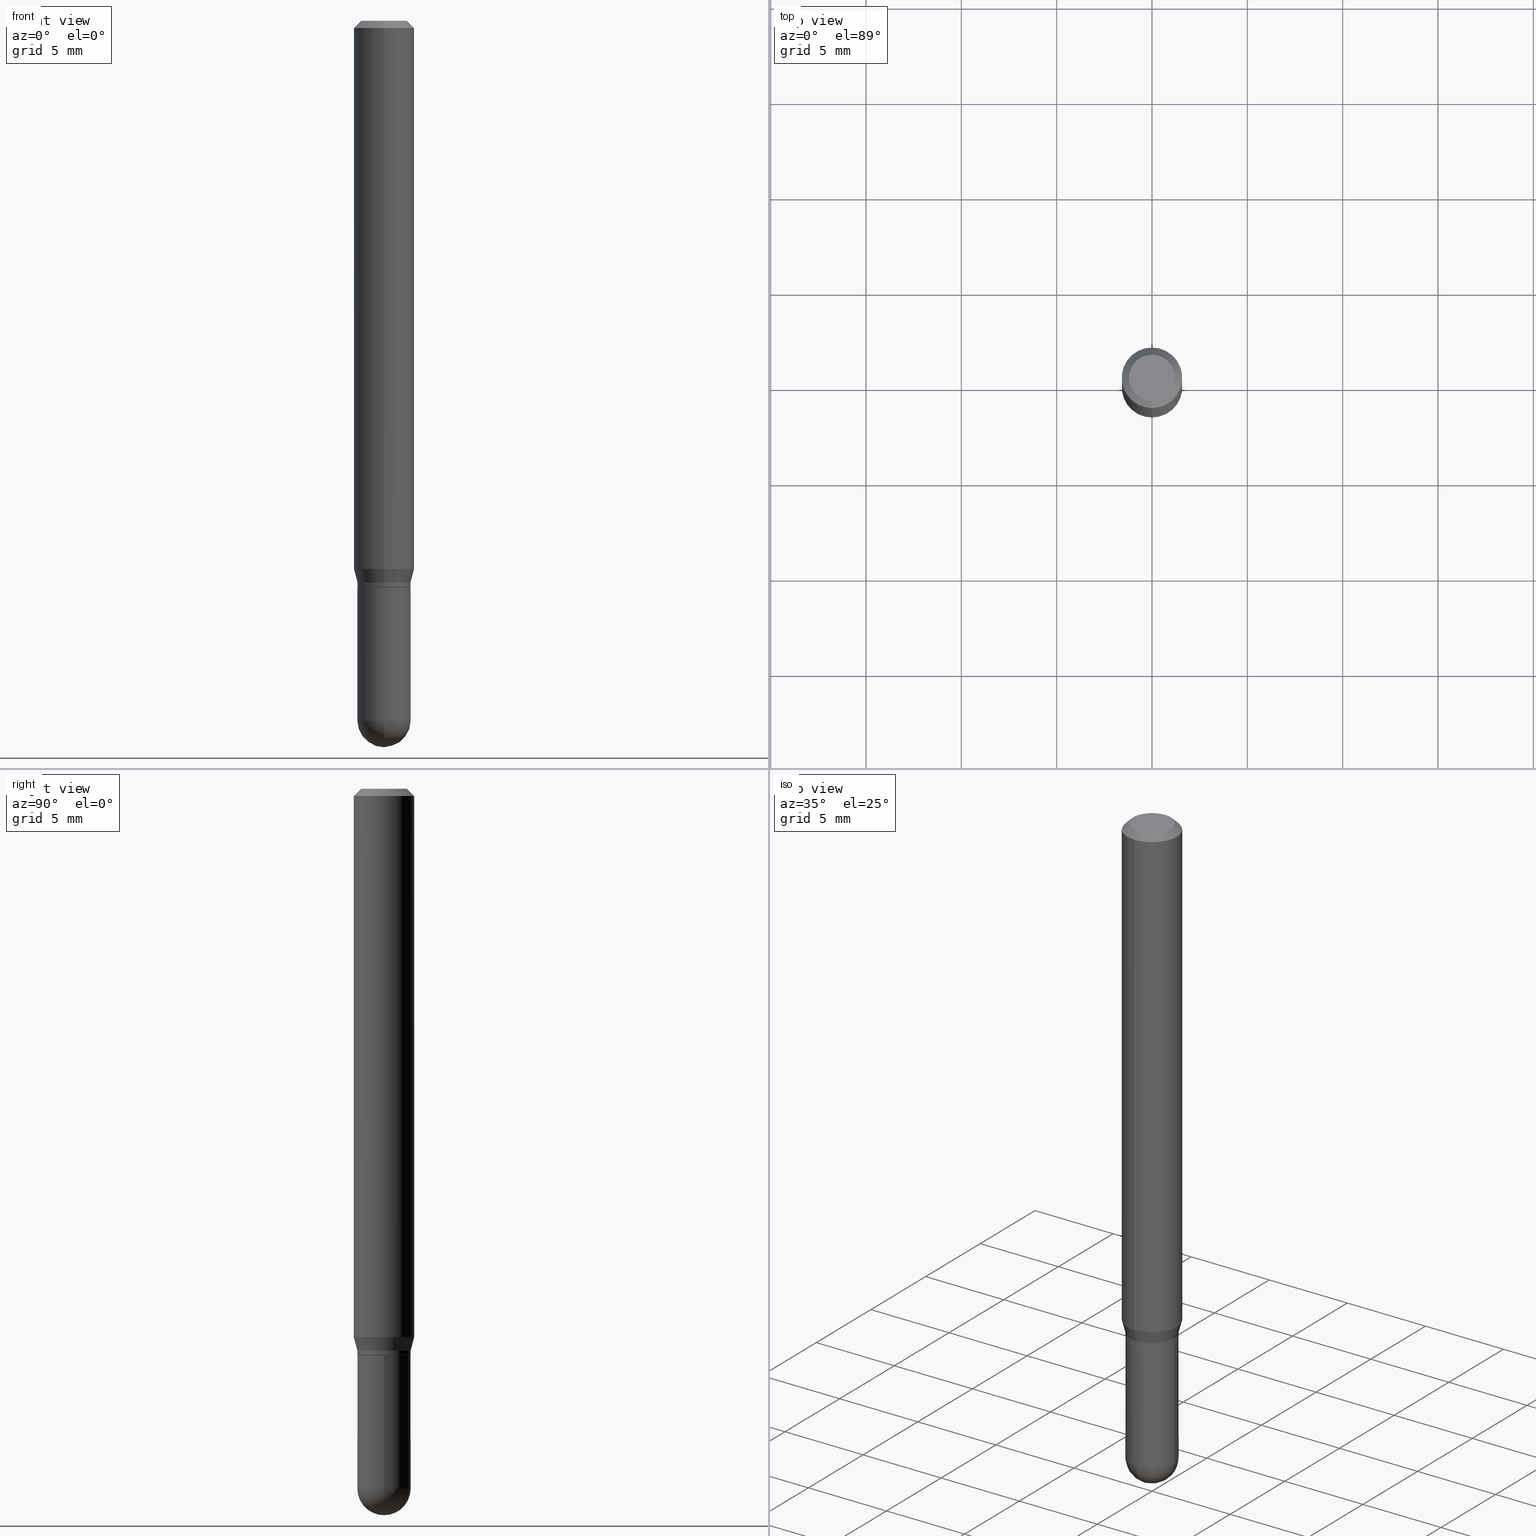
[diagram: canonical four-view strip — front | top / right | iso, engineering-drawing reading convention]
A machine part, canonical four-view strip (front | top / right | iso — engineering-drawing reading convention). The complete STEP part file that produces these views, byte-faithful:
ISO-10303-21;
HEADER;
FILE_DESCRIPTION (( 'STEP AP203' ),
    '1' );
FILE_NAME ('00949.STEP',
    '2024-03-07T19:08:54',
    ( '' ),
    ( '' ),
    'SwSTEP 2.0',
    'SolidWorks 2023',
    '' );
FILE_SCHEMA (( 'CONFIG_CONTROL_DESIGN' ));
ENDSEC;

DATA;
#1 = LOCAL_TIME ( 14, 8, 54.00000000000000000, #371 ) ;
#2 = ORIENTED_EDGE ( 'NONE', *, *, #196, .F. ) ;
#3 = CARTESIAN_POINT ( 'NONE',  ( 0.05500000000000000028, -3.840629472727446888E-16, 2.681897226687764826E-30 ) ) ;
#4 = CARTESIAN_POINT ( 'NONE',  ( -4.364351673553640100E-16, -0.06250000000000395517, -1.132009618943233598 ) ) ;
#5 = DIRECTION ( 'NONE',  ( -2.445468806185136597E-29, 3.491481338843145583E-15, 1.000000000000000000 ) ) ;
#6 = EDGE_CURVE ( 'NONE', #511, #354, #65, .T. ) ;
#7 = DIRECTION ( 'NONE',  ( 2.445557116082537122E-29, -3.491354874043780807E-15, -1.000000000000000000 ) ) ;
#8 = CARTESIAN_POINT ( 'NONE',  ( -3.840629472727450832E-16, -0.05500000000000006273, 1.920245180724081594E-16 ) ) ;
#9 = ORIENTED_EDGE ( 'NONE', *, *, #141, .T. ) ;
#10 = CARTESIAN_POINT ( 'NONE',  ( 3.533702424937522517E-29, -5.045190534628345684E-15, -1.445000000000000062 ) ) ;
#11 = EDGE_LOOP ( 'NONE', ( #123, #34, #121, #2 ) ) ;
#12 = ADVANCED_FACE ( 'NONE', ( #307 ), #463, .T. ) ;
#13 = DIRECTION ( 'NONE',  ( -2.445557116082537122E-29, 3.491354874043780807E-15, 1.000000000000000000 ) ) ;
#14 = DIRECTION ( 'NONE',  ( 1.000000000000000000, -6.982962677686262766E-15, 0.000000000000000000 ) ) ;
#15 = EDGE_LOOP ( 'NONE', ( #269, #251 ) ) ;
#16 = COORDINATED_UNIVERSAL_TIME_OFFSET ( 5, 0, .BEHIND. ) ;
#17 = CARTESIAN_POINT ( 'NONE',  ( 3.533702424937522517E-29, -5.045190534628345684E-15, -1.445000000000000062 ) ) ;
#18 = VERTEX_POINT ( 'NONE', #283 ) ;
#19 = APPLICATION_PROTOCOL_DEFINITION ( 'international standard', 'config_control_design', 1994, #189 ) ;
#20 = VECTOR ( 'NONE', #406, 39.37007874015748854 ) ;
#21 = CIRCLE ( 'NONE', #147, 0.06250000000000000000 ) ;
#22 = CYLINDRICAL_SURFACE ( 'NONE', #61, 0.05500000000000000028 ) ;
#23 = MECHANICAL_CONTEXT ( 'NONE', #189, 'mechanical' ) ;
#24 = FACE_OUTER_BOUND ( 'NONE', #337, .T. ) ;
#25 = CARTESIAN_POINT ( 'NONE',  ( -0.05500000000000000028, -4.174313345869358610E-15, -1.170000000000000151 ) ) ;
#26 = ORIENTED_EDGE ( 'NONE', *, *, #411, .F. ) ;
#27 = AXIS2_PLACEMENT_3D ( 'NONE', #403, #86, #250 ) ;
#28 = AXIS2_PLACEMENT_3D ( 'NONE', #282, #212, #479 ) ;
#29 = CARTESIAN_POINT ( 'NONE',  ( 2.860079047258527104E-29, -4.083139525194202180E-15, -1.169499999999999984 ) ) ;
#30 = EDGE_CURVE ( 'NONE', #91, #213, #345, .T. ) ;
#31 = EDGE_CURVE ( 'NONE', #18, #308, #184, .T. ) ;
#32 = FACE_OUTER_BOUND ( 'NONE', #339, .T. ) ;
#33 = AXIS2_PLACEMENT_3D ( 'NONE', #165, #119, #348 ) ;
#34 = ORIENTED_EDGE ( 'NONE', *, *, #501, .T. ) ;
#35 = EDGE_LOOP ( 'NONE', ( #254, #507, #302, #195 ) ) ;
#36 =( NAMED_UNIT ( * ) SI_UNIT ( $, .STERADIAN. ) SOLID_ANGLE_UNIT ( ) );
#37 = ORIENTED_EDGE ( 'NONE', *, *, #370, .F. ) ;
#38 = EDGE_LOOP ( 'NONE', ( #134, #170 ) ) ;
#39 = CIRCLE ( 'NONE', #325, 0.05500000000000000028 ) ;
#40 = VECTOR ( 'NONE', #338, 39.37007874015748143 ) ;
#41 = CYLINDRICAL_SURFACE ( 'NONE', #353, 0.05500000000000006273 ) ;
#42 =( NAMED_UNIT ( * ) PLANE_ANGLE_UNIT ( ) SI_UNIT ( $, .RADIAN. ) );
#43 = CC_DESIGN_PERSON_AND_ORGANIZATION_ASSIGNMENT ( #489, #281, ( #391 ) ) ;
#44 = DIRECTION ( 'NONE',  ( -2.445557116082537122E-29, 3.491354874043780807E-15, 1.000000000000000000 ) ) ;
#45 = DIRECTION ( 'NONE',  ( -2.445557116082537122E-29, 3.491354874043780807E-15, 1.000000000000000000 ) ) ;
#46 = CALENDAR_DATE ( 2024, 7, 3 ) ;
#47 = ORIENTED_EDGE ( 'NONE', *, *, #381, .T. ) ;
#48 = CYLINDRICAL_SURFACE ( 'NONE', #464, 0.05500000000000000028 ) ;
#49 = DIRECTION ( 'NONE',  ( 1.000000000000000000, -6.982962677686262766E-15, 0.000000000000000000 ) ) ;
#50 = ORIENTED_EDGE ( 'NONE', *, *, #106, .T. ) ;
#51 = CONICAL_SURFACE ( 'NONE', #305, 0.05500000000000006967, 0.2617993877991495744 ) ;
#52 = DIRECTION ( 'NONE',  ( -6.982962677686266711E-15, -1.000000000000000000, 3.491354874043780807E-15 ) ) ;
#53 = VERTEX_POINT ( 'NONE', #357 ) ;
#54 = APPROVAL_DATE_TIME ( #352, #126 ) ;
#55 = CARTESIAN_POINT ( 'NONE',  ( -3.805714659338729375E-16, -0.05450000000000408684, -1.169999999999999929 ) ) ;
#56 = FACE_OUTER_BOUND ( 'NONE', #11, .T. ) ;
#57 = ORIENTED_EDGE ( 'NONE', *, *, #462, .F. ) ;
#58 = COORDINATED_UNIVERSAL_TIME_OFFSET ( 5, 0, .BEHIND. ) ;
#59 = DIRECTION ( 'NONE',  ( -6.982962677686265133E-15, -1.000000000000000000, 2.483498176058417988E-15 ) ) ;
#60 = VERTEX_POINT ( 'NONE', #431 ) ;
#61 = AXIS2_PLACEMENT_3D ( 'NONE', #252, #375, #179 ) ;
#62 = EDGE_CURVE ( 'NONE', #358, #458, #393, .T. ) ;
#63 = CARTESIAN_POINT ( 'NONE',  ( -4.364351673553916201E-16, -0.06250000000000000000, 2.182096796277363005E-16 ) ) ;
#64 = CARTESIAN_POINT ( 'NONE',  ( 4.440892098500625669E-16, 0.06250000000000000000, -2.182096796277363005E-16 ) ) ;
#65 = CIRCLE ( 'NONE', #267, 0.06250000000000000000 ) ;
#66 = CIRCLE ( 'NONE', #503, 0.05500000000000006967 ) ;
#67 = ADVANCED_FACE ( 'NONE', ( #440 ), #133, .T. ) ;
#68 = APPROVAL_PERSON_ORGANIZATION ( #245, #126, #284 ) ;
#69 = DIRECTION ( 'NONE',  ( -2.445557116082537122E-29, 3.491354874043780807E-15, 1.000000000000000000 ) ) ;
#70 = CIRCLE ( 'NONE', #327, 0.05500000000000006273 ) ;
#71 = ADVANCED_FACE ( 'NONE', ( #56 ), #41, .T. ) ;
#72 = APPROVAL_PERSON_ORGANIZATION ( #131, #183, #362 ) ;
#73 = AXIS2_PLACEMENT_3D ( 'NONE', #111, #69, #209 ) ;
#74 = EDGE_LOOP ( 'NONE', ( #9, #502, #26, #499 ) ) ;
#75 = EDGE_LOOP ( 'NONE', ( #387, #50, #194, #422 ) ) ;
#76 = DIRECTION ( 'NONE',  ( -2.445557116082537122E-29, 3.491354874043780807E-15, 1.000000000000000000 ) ) ;
#77 = DIRECTION ( 'NONE',  ( -2.445557116082537122E-29, 3.491354874043780807E-15, 1.000000000000000000 ) ) ;
#78 = ADVANCED_FACE ( 'NONE', ( #399 ), #287, .T. ) ;
#79 = AXIS2_PLACEMENT_3D ( 'NONE', #82, #7, #127 ) ;
#80 = APPROVAL_PERSON_ORGANIZATION ( #255, #409, #218 ) ;
#81 = ORIENTED_EDGE ( 'NONE', *, *, #474, .T. ) ;
#82 = CARTESIAN_POINT ( 'NONE',  ( 3.668335674123808416E-31, -5.237032311065674440E-17, -0.01500000000000000812 ) ) ;
#83 = FACE_OUTER_BOUND ( 'NONE', #230, .T. ) ;
#84 = SECURITY_CLASSIFICATION_LEVEL ( 'unclassified' ) ;
#85 = EDGE_CURVE ( 'NONE', #166, #18, #226, .T. ) ;
#86 = DIRECTION ( 'NONE',  ( -2.445557116082537122E-29, 3.491354874043780807E-15, 1.000000000000000000 ) ) ;
#87 = ADVANCED_FACE ( 'NONE', ( #83 ), #496, .T. ) ;
#88 = PRODUCT_RELATED_PRODUCT_CATEGORY ( 'detail', '', ( #363 ) ) ;
#89 = FACE_OUTER_BOUND ( 'NONE', #139, .T. ) ;
#90 = DIRECTION ( 'NONE',  ( 6.982962677686266711E-15, 1.000000000000000000, -4.966996352116837554E-15 ) ) ;
#91 = VERTEX_POINT ( 'NONE', #158 ) ;
#92 = CIRCLE ( 'NONE', #219, 0.05500000000000000028 ) ;
#93 = DIRECTION ( 'NONE',  ( -6.982962677686265133E-15, -1.000000000000000000, 2.483498176058417988E-15 ) ) ;
#94 = DIRECTION ( 'NONE',  ( -2.445468806185136597E-29, 3.491481338843145583E-15, 1.000000000000000000 ) ) ;
#95 = ORIENTED_EDGE ( 'NONE', *, *, #6, .T. ) ;
#96 = APPROVAL_DATE_TIME ( #294, #409 ) ;
#97 = COORDINATED_UNIVERSAL_TIME_OFFSET ( 5, 0, .BEHIND. ) ;
#98 = DIRECTION ( 'NONE',  ( 6.982962677686265922E-15, 1.000000000000000000, -3.483106191921935554E-15 ) ) ;
#99 = CARTESIAN_POINT ( 'NONE',  ( -4.287811248607203282E-16, -0.06250000000000005551, -0.01499999999999979128 ) ) ;
#100 = CC_DESIGN_PERSON_AND_ORGANIZATION_ASSIGNMENT ( #436, #241, ( #391 ) ) ;
#101 = DIRECTION ( 'NONE',  ( -6.982962677686266711E-15, -1.000000000000000000, 2.506282562994736586E-15 ) ) ;
#102 = AXIS2_PLACEMENT_3D ( 'NONE', #373, #188, #138 ) ;
#103 = CARTESIAN_POINT ( 'NONE',  ( 2.836846254655743353E-29, -4.049971653890786147E-15, -1.160000000000000142 ) ) ;
#104 = DIRECTION ( 'NONE',  ( -2.445557116082537122E-29, 3.491354874043780807E-15, 1.000000000000000000 ) ) ;
#105 = CARTESIAN_POINT ( 'NONE',  ( 3.907985046680839469E-16, 0.05499999999999602429, -1.160000000000000364 ) ) ;
#106 = EDGE_CURVE ( 'NONE', #481, #166, #300, .T. ) ;
#107 = VERTEX_POINT ( 'NONE', #402 ) ;
#108 = CIRCLE ( 'NONE', #425, 0.06250000000000000000 ) ;
#109 = CIRCLE ( 'NONE', #248, 0.05450000000000000677 ) ;
#110 = ORIENTED_EDGE ( 'NONE', *, *, #62, .T. ) ;
#111 = CARTESIAN_POINT ( 'NONE',  ( 0.000000000000000000, 0.000000000000000000, 0.000000000000000000 ) ) ;
#112 = DIRECTION ( 'NONE',  ( -1.000000000000000000, 6.982962677686266711E-15, -4.883557194083112340E-29 ) ) ;
#113 = CIRCLE ( 'NONE', #433, 0.05500000000000006273 ) ;
#114 = LOCAL_TIME ( 14, 8, 54.00000000000000000, #97 ) ;
#115 = CARTESIAN_POINT ( 'NONE',  ( 4.440892098500901277E-16, 0.06249999999999603789, -1.132009618943234264 ) ) ;
#116 = VERTEX_POINT ( 'NONE', #312 ) ;
#117 = EDGE_CURVE ( 'NONE', #203, #53, #39, .T. ) ;
#118 = CARTESIAN_POINT ( 'NONE',  ( 3.890221478286836949E-16, 0.05449999999999592670, -1.170000000000000151 ) ) ;
#119 = DIRECTION ( 'NONE',  ( -2.445557116082537122E-29, 3.491354874043780807E-15, 1.000000000000000000 ) ) ;
#120 = DIRECTION ( 'NONE',  ( -2.445557116082536842E-29, 3.491354874043780807E-15, 1.000000000000000000 ) ) ;
#121 = ORIENTED_EDGE ( 'NONE', *, *, #163, .T. ) ;
#122 = DIRECTION ( 'NONE',  ( -2.445468806185136877E-29, 3.491481338843145188E-15, 1.000000000000000000 ) ) ;
#123 = ORIENTED_EDGE ( 'NONE', *, *, #388, .F. ) ;
#124 = FACE_OUTER_BOUND ( 'NONE', #306, .T. ) ;
#125 = DATE_AND_TIME ( #180, #137 ) ;
#126 = APPROVAL ( #202, 'UNSPECIFIED' ) ;
#127 = DIRECTION ( 'NONE',  ( 6.982962677686265922E-15, 1.000000000000000000, -3.483106191921935554E-15 ) ) ;
#128 = EDGE_CURVE ( 'NONE', #18, #53, #472, .T. ) ;
#129 = CARTESIAN_POINT ( 'NONE',  ( 3.668335674123808416E-31, -5.237032311065674440E-17, -0.01500000000000000812 ) ) ;
#130 = EDGE_LOOP ( 'NONE', ( #377, #110, #434, #365 ) ) ;
#131 = PERSON_AND_ORGANIZATION ( #315, #207 ) ;
#132 = DIRECTION ( 'NONE',  ( 6.982962677686265922E-15, 1.000000000000000000, -3.491354874043780807E-15 ) ) ;
#133 = CYLINDRICAL_SURFACE ( 'NONE', #27, 0.06250000000000000000 ) ;
#134 = ORIENTED_EDGE ( 'NONE', *, *, #266, .T. ) ;
#135 = AXIS2_PLACEMENT_3D ( 'NONE', #444, #5, #49 ) ;
#136 = VECTOR ( 'NONE', #301, 39.37007874015748143 ) ;
#137 = LOCAL_TIME ( 14, 8, 54.00000000000000000, #58 ) ;
#138 = DIRECTION ( 'NONE',  ( 6.982962677686265922E-15, 1.000000000000000000, 0.000000000000000000 ) ) ;
#139 = EDGE_LOOP ( 'NONE', ( #273, #81, #488, #400 ) ) ;
#140 = DATE_AND_TIME ( #46, #421 ) ;
#141 = EDGE_CURVE ( 'NONE', #354, #511, #108, .T. ) ;
#142 = CARTESIAN_POINT ( 'NONE',  ( 4.364351673553919652E-16, 0.06249999999999995143, -0.01500000000000022669 ) ) ;
#143 = VECTOR ( 'NONE', #122, 39.37007874015748143 ) ;
#144 = CARTESIAN_POINT ( 'NONE',  ( -4.364351673553912750E-16, -0.06250000000000005551, -0.01499999999999979128 ) ) ;
#145 = ORIENTED_EDGE ( 'NONE', *, *, #474, .F. ) ;
#146 = ORIENTED_EDGE ( 'NONE', *, *, #501, .F. ) ;
#147 = AXIS2_PLACEMENT_3D ( 'NONE', #222, #104, #456 ) ;
#148 = ADVANCED_BREP_SHAPE_REPRESENTATION ( '00949', ( #190, #342, #384 ), #316 ) ;
#149 = ORIENTED_EDGE ( 'NONE', *, *, #192, .F. ) ;
#150 = ORIENTED_EDGE ( 'NONE', *, *, #370, .T. ) ;
#151 = ORIENTED_EDGE ( 'NONE', *, *, #461, .T. ) ;
#152 = ORIENTED_EDGE ( 'NONE', *, *, #106, .F. ) ;
#153 = CLOSED_SHELL ( 'NONE', ( #280, #506, #303, #78, #467 ) ) ;
#154 = AXIS2_PLACEMENT_3D ( 'NONE', #398, #311, #93 ) ;
#155 = VERTEX_POINT ( 'NONE', #240 ) ;
#156 = DIRECTION ( 'NONE',  ( -2.445557116082537122E-29, 3.491354874043780807E-15, 1.000000000000000000 ) ) ;
#157 = DIRECTION ( 'NONE',  ( -6.982962677686266711E-15, -1.000000000000000000, 2.506282562994736586E-15 ) ) ;
#158 = CARTESIAN_POINT ( 'NONE',  ( 4.440892098500904235E-16, 0.06249999999999995143, -0.01500000000000022669 ) ) ;
#159 = DIRECTION ( 'NONE',  ( -1.807323732225325406E-15, -0.2588190451025175198, 0.9659258262890690894 ) ) ;
#160 = DIRECTION ( 'NONE',  ( -6.982962677686265922E-15, -1.000000000000000000, 2.483498176058418383E-15 ) ) ;
#161 = CARTESIAN_POINT ( 'NONE',  ( -3.907985046680198520E-16, -0.05500000000000507955, -1.444999999999999840 ) ) ;
#162 = PERSON_AND_ORGANIZATION_ROLE ( 'creator' ) ;
#163 = EDGE_CURVE ( 'NONE', #107, #173, #395, .T. ) ;
#164 = ORIENTED_EDGE ( 'NONE', *, *, #229, .T. ) ;
#165 = CARTESIAN_POINT ( 'NONE',  ( 2.861301825816568708E-29, -4.084885202631223537E-15, -1.170000000000000151 ) ) ;
#166 = VERTEX_POINT ( 'NONE', #161 ) ;
#167 = DIRECTION ( 'NONE',  ( 1.000000000000000000, 0.000000000000000000, 0.000000000000000000 ) ) ;
#168 = FACE_OUTER_BOUND ( 'NONE', #292, .T. ) ;
#169 = CARTESIAN_POINT ( 'NONE',  ( 3.872457909892832456E-16, 0.05449999999999592670, -1.170000000000000151 ) ) ;
#170 = ORIENTED_EDGE ( 'NONE', *, *, #174, .T. ) ;
#171 = APPROVAL_STATUS ( 'not_yet_approved' ) ;
#172 = DIRECTION ( 'NONE',  ( -2.445468806185136597E-29, 3.491481338843145583E-15, 1.000000000000000000 ) ) ;
#173 = VERTEX_POINT ( 'NONE', #317 ) ;
#174 = EDGE_CURVE ( 'NONE', #60, #155, #232, .T. ) ;
#175 = DATE_AND_TIME ( #214, #1 ) ;
#176 = VECTOR ( 'NONE', #364, 39.37007874015748143 ) ;
#177 = DIRECTION ( 'NONE',  ( -2.445468806185136597E-29, 3.491481338843145583E-15, 1.000000000000000000 ) ) ;
#178 = ADVANCED_FACE ( 'NONE', ( #124 ), #304, .T. ) ;
#179 = DIRECTION ( 'NONE',  ( 1.000000000000000000, -6.982962677686266711E-15, 4.876176775795935793E-29 ) ) ;
#180 = CALENDAR_DATE ( 2024, 7, 3 ) ;
#181 = LINE ( 'NONE', #494, #442 ) ;
#182 = CYLINDRICAL_SURFACE ( 'NONE', #419, 0.05500000000000006273 ) ;
#183 = APPROVAL ( #492, 'UNSPECIFIED' ) ;
#184 = CIRCLE ( 'NONE', #486, 0.05500000000000000028 ) ;
#185 = AXIS2_PLACEMENT_3D ( 'NONE', #478, #285, #416 ) ;
#186 = ORIENTED_EDGE ( 'NONE', *, *, #141, .F. ) ;
#187 = CARTESIAN_POINT ( 'NONE',  ( -0.05500000000000000028, 3.907985046680551042E-16, -2.705414299640198362E-30 ) ) ;
#188 = DIRECTION ( 'NONE',  ( 1.000000000000000000, -6.982962677686265922E-15, 4.883557194083112340E-29 ) ) ;
#189 = APPLICATION_CONTEXT ( 'configuration controlled 3d designs of mechanical parts and assemblies' ) ;
#190 = MANIFOLD_SOLID_BREP ( 'Body-Move/Copy2[1]', #153 ) ;
#191 = ORIENTED_EDGE ( 'NONE', *, *, #266, .F. ) ;
#192 = EDGE_CURVE ( 'NONE', #53, #203, #92, .T. ) ;
#193 = PRODUCT_DEFINITION ( 'UNKNOWN', '', #391, #500 ) ;
#194 = ORIENTED_EDGE ( 'NONE', *, *, #504, .F. ) ;
#195 = ORIENTED_EDGE ( 'NONE', *, *, #6, .F. ) ;
#196 = EDGE_CURVE ( 'NONE', #243, #173, #66, .T. ) ;
#197 = PLANE ( 'NONE',  #473 ) ;
#198 = AXIS2_PLACEMENT_3D ( 'NONE', #480, #246, #320 ) ;
#199 = ORIENTED_EDGE ( 'NONE', *, *, #388, .T. ) ;
#200 = VECTOR ( 'NONE', #493, 39.37007874015748143 ) ;
#201 = CARTESIAN_POINT ( 'NONE',  ( 2.168310828084403938E-46, -3.095549283347382873E-32, -8.866326669800925225E-18 ) ) ;
#202 = APPROVAL_STATUS ( 'not_yet_approved' ) ;
#203 = VERTEX_POINT ( 'NONE', #25 ) ;
#204 = DIRECTION ( 'NONE',  ( -1.000000000000000000, 6.982962677686266711E-15, -4.883557194083112340E-29 ) ) ;
#205 = VECTOR ( 'NONE', #275, 39.37007874015748143 ) ;
#206 = ORIENTED_EDGE ( 'NONE', *, *, #128, .F. ) ;
#207 = ORGANIZATION ( 'UNSPECIFIED', 'UNSPECIFIED', '' ) ;
#208 = CARTESIAN_POINT ( 'NONE',  ( 2.860079047258527104E-29, -4.083139525194202180E-15, -1.169499999999999984 ) ) ;
#209 = DIRECTION ( 'NONE',  ( -6.982962677686265922E-15, -1.000000000000000000, 3.491354874043780807E-15 ) ) ;
#210 = EDGE_LOOP ( 'NONE', ( #152, #497, #417, #466 ) ) ;
#211 = DATE_TIME_ROLE ( 'creation_date' ) ;
#212 = DIRECTION ( 'NONE',  ( 2.438088387897960049E-29, -3.491481338843145188E-15, -1.000000000000000000 ) ) ;
#213 = VERTEX_POINT ( 'NONE', #144 ) ;
#214 = CALENDAR_DATE ( 2024, 7, 3 ) ;
#215 = EDGE_CURVE ( 'NONE', #243, #511, #451, .T. ) ;
#216 = FACE_OUTER_BOUND ( 'NONE', #35, .T. ) ;
#217 = EDGE_CURVE ( 'NONE', #358, #271, #109, .T. ) ;
#218 = APPROVAL_ROLE ( '' ) ;
#219 = AXIS2_PLACEMENT_3D ( 'NONE', #333, #177, #329 ) ;
#220 = SECURITY_CLASSIFICATION ( '', '', #84 ) ;
#221 = DIRECTION ( 'NONE',  ( -6.982962677686266711E-15, -1.000000000000000000, 2.506282562994736586E-15 ) ) ;
#222 = CARTESIAN_POINT ( 'NONE',  ( 3.668335674123808416E-31, -5.237032311065674440E-17, -0.01500000000000000812 ) ) ;
#223 = EDGE_CURVE ( 'NONE', #271, #358, #495, .T. ) ;
#224 = ORIENTED_EDGE ( 'NONE', *, *, #381, .F. ) ;
#225 = DIRECTION ( 'NONE',  ( -2.445557116082537122E-29, 3.491354874043780807E-15, 1.000000000000000000 ) ) ;
#226 = CIRCLE ( 'NONE', #135, 0.05500000000000000028 ) ;
#227 = AXIS2_PLACEMENT_3D ( 'NONE', #274, #76, #236 ) ;
#228 = CC_DESIGN_DATE_AND_TIME_ASSIGNMENT ( #125, #211, ( #193 ) ) ;
#229 = EDGE_CURVE ( 'NONE', #354, #213, #413, .T. ) ;
#230 = EDGE_LOOP ( 'NONE', ( #468, #429, #424, #146 ) ) ;
#231 = LOCAL_TIME ( 14, 8, 54.00000000000000000, #16 ) ;
#232 = CIRCLE ( 'NONE', #427, 0.04749999999999999362 ) ;
#233 = EDGE_CURVE ( 'NONE', #173, #354, #181, .T. ) ;
#234 = CARTESIAN_POINT ( 'NONE',  ( 2.861301825816568708E-29, -4.084885202631223537E-15, -1.170000000000000151 ) ) ;
#235 = ADVANCED_FACE ( 'NONE', ( #32 ), #277, .T. ) ;
#236 = DIRECTION ( 'NONE',  ( -6.982962677686265133E-15, -1.000000000000000000, 2.483498176058417988E-15 ) ) ;
#237 = DIRECTION ( 'NONE',  ( 1.000000000000000000, -6.982962677686262766E-15, 0.000000000000000000 ) ) ;
#238 = AXIS2_PLACEMENT_3D ( 'NONE', #378, #376, #98 ) ;
#239 = CARTESIAN_POINT ( 'NONE',  ( 3.840629472727801875E-16, 0.05499999999999497652, -1.445000000000000284 ) ) ;
#240 = CARTESIAN_POINT ( 'NONE',  ( 3.840629472727447874E-16, 0.04749999999999999362, -1.747056831868805136E-16 ) ) ;
#241 = PERSON_AND_ORGANIZATION_ROLE ( 'design_supplier' ) ;
#242 = UNCERTAINTY_MEASURE_WITH_UNIT (LENGTH_MEASURE( 1.000000000000000082E-05 ), #313, 'distance_accuracy_value', 'NONE');
#243 = VERTEX_POINT ( 'NONE', #359 ) ;
#244 = DIRECTION ( 'NONE',  ( -6.982962677686265922E-15, -1.000000000000000000, 3.491354874043780807E-15 ) ) ;
#245 = PERSON_AND_ORGANIZATION ( #315, #207 ) ;
#246 = DIRECTION ( 'NONE',  ( -1.000000000000000000, 7.105427357601001070E-15, -4.926315508542082329E-29 ) ) ;
#247 = AXIS2_PLACEMENT_3D ( 'NONE', #129, #77, #437 ) ;
#248 = AXIS2_PLACEMENT_3D ( 'NONE', #367, #256, #101 ) ;
#249 = LINE ( 'NONE', #394, #176 ) ;
#250 = DIRECTION ( 'NONE',  ( -6.982962677686265922E-15, -1.000000000000000000, 3.491354874043780807E-15 ) ) ;
#251 = ORIENTED_EDGE ( 'NONE', *, *, #217, .F. ) ;
#252 = CARTESIAN_POINT ( 'NONE',  ( 0.000000000000000000, 0.000000000000000000, 0.000000000000000000 ) ) ;
#253 = PRODUCT_DEFINITION_SHAPE ( 'NONE', 'NONE',  #193 ) ;
#254 = ORIENTED_EDGE ( 'NONE', *, *, #215, .F. ) ;
#255 = PERSON_AND_ORGANIZATION ( #315, #207 ) ;
#256 = DIRECTION ( 'NONE',  ( -2.445557116082537122E-29, 3.491354874043780807E-15, 1.000000000000000000 ) ) ;
#257 = CARTESIAN_POINT ( 'NONE',  ( 3.665851501982462558E-29, -5.240589786962374592E-15, -1.500000000000000222 ) ) ;
#258 = CONICAL_SURFACE ( 'NONE', #426, 0.05450000000000000677, 0.7853981633974653764 ) ;
#259 = DIRECTION ( 'NONE',  ( -2.445557116082537122E-29, 3.491354874043780807E-15, 1.000000000000000000 ) ) ;
#260 = DIRECTION ( 'NONE',  ( -2.445557116082537122E-29, 3.491354874043780807E-15, 1.000000000000000000 ) ) ;
#261 = ORIENTED_EDGE ( 'NONE', *, *, #215, .T. ) ;
#262 = CARTESIAN_POINT ( 'NONE',  ( 0.000000000000000000, 0.000000000000000000, 0.000000000000000000 ) ) ;
#263 = ADVANCED_FACE ( 'NONE', ( #89 ), #390, .T. ) ;
#264 = CIRCLE ( 'NONE', #227, 0.05500000000000006967 ) ;
#265 = DIRECTION ( 'NONE',  ( -2.445557116082537122E-29, 3.491354874043780807E-15, 1.000000000000000000 ) ) ;
#266 = EDGE_CURVE ( 'NONE', #155, #60, #268, .T. ) ;
#267 = AXIS2_PLACEMENT_3D ( 'NONE', #343, #265, #505 ) ;
#268 = CIRCLE ( 'NONE', #346, 0.04749999999999999362 ) ;
#269 = ORIENTED_EDGE ( 'NONE', *, *, #223, .F. ) ;
#270 = ADVANCED_FACE ( 'NONE', ( #483 ), #258, .T. ) ;
#271 = VERTEX_POINT ( 'NONE', #55 ) ;
#272 = DIRECTION ( 'NONE',  ( 6.982962677686266711E-15, 1.000000000000000000, -4.966996352116837554E-15 ) ) ;
#273 = ORIENTED_EDGE ( 'NONE', *, *, #174, .F. ) ;
#274 = CARTESIAN_POINT ( 'NONE',  ( 2.836846254655743353E-29, -4.049971653890786147E-15, -1.160000000000000142 ) ) ;
#275 = DIRECTION ( 'NONE',  ( -2.445557116082537122E-29, 3.491354874043780807E-15, 1.000000000000000000 ) ) ;
#276 = ORIENTED_EDGE ( 'NONE', *, *, #128, .T. ) ;
#277 = CONICAL_SURFACE ( 'NONE', #154, 0.05500000000000006967, 0.2617993877991495744 ) ;
#278 = CARTESIAN_POINT ( 'NONE',  ( 0.000000000000000000, 0.000000000000000000, 0.000000000000000000 ) ) ;
#279 = CARTESIAN_POINT ( 'NONE',  ( 0.000000000000000000, 0.000000000000000000, 0.000000000000000000 ) ) ;
#280 = ADVANCED_FACE ( 'NONE', ( #471 ), #48, .T. ) ;
#281 = PERSON_AND_ORGANIZATION_ROLE ( 'creator' ) ;
#282 = CARTESIAN_POINT ( 'NONE',  ( 3.840629472727732850E-16, 0.05499999999999591327, -1.170000000000000151 ) ) ;
#283 = CARTESIAN_POINT ( 'NONE',  ( 0.05500000000000000028, -4.949174797810157466E-15, -1.445000000000000062 ) ) ;
#284 = APPROVAL_ROLE ( '' ) ;
#285 = DIRECTION ( 'NONE',  ( -2.445468806185136597E-29, 3.491481338843145583E-15, 1.000000000000000000 ) ) ;
#286 = PLANE ( 'NONE',  #355 ) ;
#287 = SPHERICAL_SURFACE ( 'NONE', #389, 0.05500000000000005579 ) ;
#288 = ORIENTED_EDGE ( 'NONE', *, *, #163, .F. ) ;
#289 = PERSON_AND_ORGANIZATION_ROLE ( 'classification_officer' ) ;
#290 = PLANE ( 'NONE',  #28 ) ;
#291 = CARTESIAN_POINT ( 'NONE',  ( 3.528999010347036160E-29, -5.051926092023656149E-15, -1.445000000000000062 ) ) ;
#292 = EDGE_LOOP ( 'NONE', ( #448, #397 ) ) ;
#293 = VECTOR ( 'NONE', #453, 39.37007874015748143 ) ;
#294 = DATE_AND_TIME ( #405, #231 ) ;
#295 = EDGE_CURVE ( 'NONE', #107, #458, #70, .T. ) ;
#296 = CARTESIAN_POINT ( 'NONE',  ( 3.907985046680837497E-16, 0.05499999999999592715, -1.169500000000000206 ) ) ;
#297 = ORIENTED_EDGE ( 'NONE', *, *, #85, .T. ) ;
#298 = DATE_TIME_ROLE ( 'classification_date' ) ;
#299 = DIRECTION ( 'NONE',  ( -6.982962677686265133E-15, -1.000000000000000000, 2.483498176058417988E-15 ) ) ;
#300 = CIRCLE ( 'NONE', #198, 0.05500000000000005579 ) ;
#301 = DIRECTION ( 'NONE',  ( -2.445468806185136877E-29, 3.491481338843145188E-15, 1.000000000000000000 ) ) ;
#302 = ORIENTED_EDGE ( 'NONE', *, *, #233, .T. ) ;
#303 = ADVANCED_FACE ( 'NONE', ( #168 ), #290, .F. ) ;
#304 = CONICAL_SURFACE ( 'NONE', #238, 0.06250000000000000000, 0.7853981633974483900 ) ;
#305 = AXIS2_PLACEMENT_3D ( 'NONE', #410, #260, #59 ) ;
#306 = EDGE_LOOP ( 'NONE', ( #145, #191, #151, #441 ) ) ;
#307 = FACE_OUTER_BOUND ( 'NONE', #509, .T. ) ;
#308 = VERTEX_POINT ( 'NONE', #239 ) ;
#309 = DIRECTION ( 'NONE',  ( -6.982962677686265922E-15, -1.000000000000000000, 4.370956789862821150E-15 ) ) ;
#310 = CC_DESIGN_PERSON_AND_ORGANIZATION_ASSIGNMENT ( #331, #162, ( #193 ) ) ;
#311 = DIRECTION ( 'NONE',  ( -2.445557116082537122E-29, 3.491354874043780807E-15, 1.000000000000000000 ) ) ;
#312 = CARTESIAN_POINT ( 'NONE',  ( -0.05500000000000000028, -4.174313345869358610E-15, -1.445000000000000062 ) ) ;
#313 =( CONVERSION_BASED_UNIT ( 'INCH', #432 ) LENGTH_UNIT ( ) NAMED_UNIT ( #412 ) );
#314 = ADVANCED_FACE ( 'NONE', ( #430 ), #286, .F. ) ;
#315 = PERSON ( 'UNSPECIFIED', 'UNSPECIFIED', 'UNSPECIFIED', ('UNSPECIFIED'), ('UNSPECIFIED'), ('UNSPECIFIED') ) ;
#316 =( GEOMETRIC_REPRESENTATION_CONTEXT ( 3 ) GLOBAL_UNCERTAINTY_ASSIGNED_CONTEXT ( ( #242 ) ) GLOBAL_UNIT_ASSIGNED_CONTEXT ( ( #313, #42, #36 ) ) REPRESENTATION_CONTEXT ( 'NONE', 'WORKASPACE' ) );
#317 = CARTESIAN_POINT ( 'NONE',  ( -3.840629472727166842E-16, -0.05500000000000411504, -1.160000000000000142 ) ) ;
#318 = COORDINATED_UNIVERSAL_TIME_OFFSET ( 5, 0, .BEHIND. ) ;
#319 = DIRECTION ( 'NONE',  ( -2.445468806185136597E-29, 3.491481338843145583E-15, 1.000000000000000000 ) ) ;
#320 = DIRECTION ( 'NONE',  ( -7.105427357601000281E-15, -1.000000000000000000, 0.000000000000000000 ) ) ;
#321 = CARTESIAN_POINT ( 'NONE',  ( 2.768394179080506773E-29, -3.952247300561902439E-15, -1.132009618943233820 ) ) ;
#322 = EDGE_LOOP ( 'NONE', ( #224, #485, #297, #276, #382 ) ) ;
#323 = CARTESIAN_POINT ( 'NONE',  ( 0.000000000000000000, 0.000000000000000000, 0.000000000000000000 ) ) ;
#324 = DIRECTION ( 'NONE',  ( 1.000000000000000000, -6.982962677686262766E-15, 0.000000000000000000 ) ) ;
#325 = AXIS2_PLACEMENT_3D ( 'NONE', #360, #94, #14 ) ;
#326 = ORIENTED_EDGE ( 'NONE', *, *, #344, .T. ) ;
#327 = AXIS2_PLACEMENT_3D ( 'NONE', #208, #13, #160 ) ;
#328 = APPROVAL_DATE_TIME ( #175, #183 ) ;
#329 = DIRECTION ( 'NONE',  ( 1.000000000000000000, -6.982962677686262766E-15, 0.000000000000000000 ) ) ;
#330 = LINE ( 'NONE', #414, #40 ) ;
#331 = PERSON_AND_ORGANIZATION ( #315, #207 ) ;
#332 = EDGE_CURVE ( 'NONE', #271, #107, #249, .T. ) ;
#333 = CARTESIAN_POINT ( 'NONE',  ( 2.861198503236610065E-29, -4.085033166446480067E-15, -1.170000000000000151 ) ) ;
#334 = CARTESIAN_POINT ( 'NONE',  ( 2.861301825816568708E-29, -4.084885202631223537E-15, -1.170000000000000151 ) ) ;
#335 = DIRECTION ( 'NONE',  ( -6.982962677686265922E-15, -1.000000000000000000, 2.483498176058418383E-15 ) ) ;
#336 = VECTOR ( 'NONE', #498, 39.37007874015748143 ) ;
#337 = EDGE_LOOP ( 'NONE', ( #386, #199, #37, #288 ) ) ;
#338 = DIRECTION ( 'NONE',  ( -2.445557116082537122E-29, 3.491354874043780807E-15, 1.000000000000000000 ) ) ;
#339 = EDGE_LOOP ( 'NONE', ( #150, #261, #186, #407 ) ) ;
#340 = AXIS2_PLACEMENT_3D ( 'NONE', #383, #112, #272 ) ;
#341 = CC_DESIGN_SECURITY_CLASSIFICATION ( #220, ( #391 ) ) ;
#342 = MANIFOLD_SOLID_BREP ( 'Body-Move/Copy2[2]', #452 ) ;
#343 = CARTESIAN_POINT ( 'NONE',  ( 2.768394179080506773E-29, -3.952247300561902439E-15, -1.132009618943233820 ) ) ;
#344 = EDGE_CURVE ( 'NONE', #308, #116, #460, .T. ) ;
#345 = CIRCLE ( 'NONE', #247, 0.06250000000000000000 ) ;
#346 = AXIS2_PLACEMENT_3D ( 'NONE', #201, #44, #52 ) ;
#347 = CC_DESIGN_APPROVAL ( #409, ( #193 ) ) ;
#348 = DIRECTION ( 'NONE',  ( -6.982962677686266711E-15, -1.000000000000000000, 2.506282562994736586E-15 ) ) ;
#349 = DIRECTION ( 'NONE',  ( 1.000000000000000000, -6.982962677686266711E-15, 4.876176775795935793E-29 ) ) ;
#350 = DIRECTION ( 'NONE',  ( 5.024295867788147587E-15, 0.7071067811865620056, 0.7071067811865330288 ) ) ;
#351 = DIRECTION ( 'NONE',  ( -2.445468806185136597E-29, 3.491481338843145583E-15, 1.000000000000000000 ) ) ;
#352 = DATE_AND_TIME ( #477, #114 ) ;
#353 = AXIS2_PLACEMENT_3D ( 'NONE', #279, #156, #244 ) ;
#354 = VERTEX_POINT ( 'NONE', #4 ) ;
#355 = AXIS2_PLACEMENT_3D ( 'NONE', #439, #435, #132 ) ;
#356 = CC_DESIGN_DATE_AND_TIME_ASSIGNMENT ( #140, #298, ( #220 ) ) ;
#357 = CARTESIAN_POINT ( 'NONE',  ( 0.05500000000000000028, -4.469096113719225052E-15, -1.170000000000000151 ) ) ;
#358 = VERTEX_POINT ( 'NONE', #118 ) ;
#359 = CARTESIAN_POINT ( 'NONE',  ( 4.174438572590871852E-16, 0.05499999999999602429, -1.160000000000000364 ) ) ;
#360 = CARTESIAN_POINT ( 'NONE',  ( 2.861198503236610065E-29, -4.085033166446480067E-15, -1.170000000000000151 ) ) ;
#361 = EDGE_LOOP ( 'NONE', ( #326, #47, #149, #206, #404 ) ) ;
#362 = APPROVAL_ROLE ( '' ) ;
#363 = PRODUCT ( '00949', '00949', '', ( #23 ) ) ;
#364 = DIRECTION ( 'NONE',  ( -4.937700262164631661E-15, -0.7071067811865571207, 0.7071067811865379138 ) ) ;
#365 = ORIENTED_EDGE ( 'NONE', *, *, #332, .F. ) ;
#366 = PERSON_AND_ORGANIZATION_ROLE ( 'design_owner' ) ;
#367 = CARTESIAN_POINT ( 'NONE',  ( 2.861301825816568708E-29, -4.084885202631223537E-15, -1.170000000000000151 ) ) ;
#368 = LINE ( 'NONE', #142, #200 ) ;
#369 = AXIS2_PLACEMENT_3D ( 'NONE', #17, #172, #324 ) ;
#370 = EDGE_CURVE ( 'NONE', #173, #243, #264, .T. ) ;
#371 = COORDINATED_UNIVERSAL_TIME_OFFSET ( 5, 0, .BEHIND. ) ;
#372 = CC_DESIGN_PERSON_AND_ORGANIZATION_ASSIGNMENT ( #482, #366, ( #363 ) ) ;
#373 = CARTESIAN_POINT ( 'NONE',  ( 3.528999010347036160E-29, -5.051926092023656149E-15, -1.445000000000000062 ) ) ;
#374 = DIRECTION ( 'NONE',  ( -2.445557116082537122E-29, 3.491354874043780807E-15, 1.000000000000000000 ) ) ;
#375 = DIRECTION ( 'NONE',  ( -2.445468806185136597E-29, 3.491481338843145583E-15, 1.000000000000000000 ) ) ;
#376 = DIRECTION ( 'NONE',  ( 2.445557116082537122E-29, -3.491354874043780807E-15, -1.000000000000000000 ) ) ;
#377 = ORIENTED_EDGE ( 'NONE', *, *, #223, .T. ) ;
#378 = CARTESIAN_POINT ( 'NONE',  ( 3.668335674123808416E-31, -5.237032311065674440E-17, -0.01500000000000000812 ) ) ;
#379 = CC_DESIGN_PERSON_AND_ORGANIZATION_ASSIGNMENT ( #449, #289, ( #220 ) ) ;
#380 = VECTOR ( 'NONE', #374, 39.37007874015748143 ) ;
#381 = EDGE_CURVE ( 'NONE', #116, #203, #392, .T. ) ;
#382 = ORIENTED_EDGE ( 'NONE', *, *, #117, .F. ) ;
#383 = CARTESIAN_POINT ( 'NONE',  ( 3.528999010347036160E-29, -5.051926092023656149E-15, -1.445000000000000062 ) ) ;
#384 = AXIS2_PLACEMENT_3D ( 'NONE', #323, #396, #167 ) ;
#385 = CC_DESIGN_APPROVAL ( #126, ( #220 ) ) ;
#386 = ORIENTED_EDGE ( 'NONE', *, *, #295, .T. ) ;
#387 = ORIENTED_EDGE ( 'NONE', *, *, #457, .F. ) ;
#388 = EDGE_CURVE ( 'NONE', #458, #243, #330, .T. ) ;
#389 = AXIS2_PLACEMENT_3D ( 'NONE', #291, #204, #90 ) ;
#390 = CONICAL_SURFACE ( 'NONE', #79, 0.06250000000000000000, 0.7853981633974483900 ) ;
#391 = PRODUCT_DEFINITION_FORMATION_WITH_SPECIFIED_SOURCE ( 'ANY', '', #363, .NOT_KNOWN. ) ;
#392 = LINE ( 'NONE', #187, #136 ) ;
#393 = LINE ( 'NONE', #169, #465 ) ;
#394 = CARTESIAN_POINT ( 'NONE',  ( -3.805714659338729375E-16, -0.05450000000000408684, -1.169999999999999929 ) ) ;
#395 = LINE ( 'NONE', #8, #205 ) ;
#396 = DIRECTION ( 'NONE',  ( 0.000000000000000000, 0.000000000000000000, 1.000000000000000000 ) ) ;
#397 = ORIENTED_EDGE ( 'NONE', *, *, #117, .T. ) ;
#398 = CARTESIAN_POINT ( 'NONE',  ( 2.836846254655743353E-29, -4.049971653890786147E-15, -1.160000000000000142 ) ) ;
#399 = FACE_OUTER_BOUND ( 'NONE', #210, .T. ) ;
#400 = ORIENTED_EDGE ( 'NONE', *, *, #461, .F. ) ;
#401 = CIRCLE ( 'NONE', #185, 0.05500000000000000028 ) ;
#402 = CARTESIAN_POINT ( 'NONE',  ( -3.840629472727168322E-16, -0.05500000000000419137, -1.169499999999999984 ) ) ;
#403 = CARTESIAN_POINT ( 'NONE',  ( 0.000000000000000000, 0.000000000000000000, 0.000000000000000000 ) ) ;
#404 = ORIENTED_EDGE ( 'NONE', *, *, #31, .T. ) ;
#405 = CALENDAR_DATE ( 2024, 7, 3 ) ;
#406 = DIRECTION ( 'NONE',  ( 1.839019923739595582E-15, 0.2588190451025242922, 0.9659258262890673130 ) ) ;
#407 = ORIENTED_EDGE ( 'NONE', *, *, #233, .F. ) ;
#408 = APPLICATION_PROTOCOL_DEFINITION ( 'international standard', 'config_control_design', 1994, #459 ) ;
#409 = APPROVAL ( #171, 'UNSPECIFIED' ) ;
#410 = CARTESIAN_POINT ( 'NONE',  ( 2.836846254655743353E-29, -4.049971653890786147E-15, -1.160000000000000142 ) ) ;
#411 = EDGE_CURVE ( 'NONE', #213, #91, #21, .T. ) ;
#412 = DIMENSIONAL_EXPONENTS ( 1.000000000000000000, 0.000000000000000000, 0.000000000000000000, 0.000000000000000000, 0.000000000000000000, 0.000000000000000000, 0.000000000000000000 ) ;
#413 = LINE ( 'NONE', #63, #380 ) ;
#414 = CARTESIAN_POINT ( 'NONE',  ( 3.907985046680554986E-16, 0.05500000000000006273, -1.920245180724081594E-16 ) ) ;
#415 = LINE ( 'NONE', #64, #293 ) ;
#416 = DIRECTION ( 'NONE',  ( 1.000000000000000000, -6.982962677686262766E-15, 0.000000000000000000 ) ) ;
#417 = ORIENTED_EDGE ( 'NONE', *, *, #31, .F. ) ;
#418 = DIRECTION ( 'NONE',  ( -6.982962677686265922E-15, -1.000000000000000000, 3.491354874043780807E-15 ) ) ;
#419 = AXIS2_PLACEMENT_3D ( 'NONE', #262, #225, #418 ) ;
#420 = FACE_OUTER_BOUND ( 'NONE', #75, .T. ) ;
#421 = LOCAL_TIME ( 14, 8, 54.00000000000000000, #318 ) ;
#422 = ORIENTED_EDGE ( 'NONE', *, *, #344, .F. ) ;
#423 = DIRECTION ( 'NONE',  ( -6.982962677686265922E-15, -1.000000000000000000, 3.491354874043780807E-15 ) ) ;
#424 = ORIENTED_EDGE ( 'NONE', *, *, #332, .T. ) ;
#425 = AXIS2_PLACEMENT_3D ( 'NONE', #321, #484, #309 ) ;
#426 = AXIS2_PLACEMENT_3D ( 'NONE', #475, #443, #157 ) ;
#427 = AXIS2_PLACEMENT_3D ( 'NONE', #469, #45, #476 ) ;
#428 =( LENGTH_UNIT ( ) NAMED_UNIT ( * ) SI_UNIT ( $, .METRE. ) );
#429 = ORIENTED_EDGE ( 'NONE', *, *, #217, .T. ) ;
#430 = FACE_OUTER_BOUND ( 'NONE', #38, .T. ) ;
#431 = CARTESIAN_POINT ( 'NONE',  ( -3.773273898774340269E-16, -0.04749999999999999362, 1.569730298472786601E-16 ) ) ;
#432 = LENGTH_MEASURE_WITH_UNIT ( LENGTH_MEASURE( 0.02539999999999999897 ), #428 );
#433 = AXIS2_PLACEMENT_3D ( 'NONE', #29, #487, #335 ) ;
#434 = ORIENTED_EDGE ( 'NONE', *, *, #295, .F. ) ;
#435 = DIRECTION ( 'NONE',  ( 2.445557116082536842E-29, -3.491354874043780807E-15, -1.000000000000000000 ) ) ;
#436 = PERSON_AND_ORGANIZATION ( #315, #207 ) ;
#437 = DIRECTION ( 'NONE',  ( -6.982962677686265922E-15, -1.000000000000000000, 3.483106191921935554E-15 ) ) ;
#438 = SHAPE_DEFINITION_REPRESENTATION ( #253, #148 ) ;
#439 = CARTESIAN_POINT ( 'NONE',  ( 3.316907271900976096E-16, 0.04749999999999999362, -1.702725198519800564E-16 ) ) ;
#440 = FACE_OUTER_BOUND ( 'NONE', #74, .T. ) ;
#441 = ORIENTED_EDGE ( 'NONE', *, *, #30, .T. ) ;
#442 = VECTOR ( 'NONE', #159, 39.37007874015748854 ) ;
#443 = DIRECTION ( 'NONE',  ( -2.445557116082537122E-29, 3.491354874043780807E-15, 1.000000000000000000 ) ) ;
#444 = CARTESIAN_POINT ( 'NONE',  ( 3.533702424937522517E-29, -5.045190534628345684E-15, -1.445000000000000062 ) ) ;
#445 = ORIENTED_EDGE ( 'NONE', *, *, #30, .F. ) ;
#446 = ADVANCED_FACE ( 'NONE', ( #216 ), #51, .T. ) ;
#447 = FACE_OUTER_BOUND ( 'NONE', #322, .T. ) ;
#448 = ORIENTED_EDGE ( 'NONE', *, *, #192, .T. ) ;
#449 = PERSON_AND_ORGANIZATION ( #315, #207 ) ;
#450 = LINE ( 'NONE', #99, #336 ) ;
#451 = LINE ( 'NONE', #105, #20 ) ;
#452 = CLOSED_SHELL ( 'NONE', ( #490, #270, #263, #67, #235, #446, #12, #178, #314, #510, #87, #71 ) ) ;
#453 = DIRECTION ( 'NONE',  ( -2.445557116082537122E-29, 3.491354874043780807E-15, 1.000000000000000000 ) ) ;
#454 = AXIS2_PLACEMENT_3D ( 'NONE', #334, #259, #221 ) ;
#455 = CC_DESIGN_APPROVAL ( #183, ( #391 ) ) ;
#456 = DIRECTION ( 'NONE',  ( -6.982962677686265922E-15, -1.000000000000000000, 3.483106191921935554E-15 ) ) ;
#457 = EDGE_CURVE ( 'NONE', #481, #308, #512, .T. ) ;
#458 = VERTEX_POINT ( 'NONE', #296 ) ;
#459 = APPLICATION_CONTEXT ( 'configuration controlled 3d designs of mechanical parts and assemblies' ) ;
#460 = CIRCLE ( 'NONE', #369, 0.05500000000000000028 ) ;
#461 = EDGE_CURVE ( 'NONE', #155, #91, #368, .T. ) ;
#462 = EDGE_CURVE ( 'NONE', #511, #91, #415, .T. ) ;
#463 = CYLINDRICAL_SURFACE ( 'NONE', #73, 0.06250000000000000000 ) ;
#464 = AXIS2_PLACEMENT_3D ( 'NONE', #278, #319, #349 ) ;
#465 = VECTOR ( 'NONE', #350, 39.37007874015748143 ) ;
#466 = ORIENTED_EDGE ( 'NONE', *, *, #85, .F. ) ;
#467 = ADVANCED_FACE ( 'NONE', ( #447 ), #22, .T. ) ;
#468 = ORIENTED_EDGE ( 'NONE', *, *, #62, .F. ) ;
#469 = CARTESIAN_POINT ( 'NONE',  ( 2.168310828084403938E-46, -3.095549283347382873E-32, -8.866326669800925225E-18 ) ) ;
#470 = FACE_OUTER_BOUND ( 'NONE', #15, .T. ) ;
#471 = FACE_OUTER_BOUND ( 'NONE', #361, .T. ) ;
#472 = LINE ( 'NONE', #3, #143 ) ;
#473 = AXIS2_PLACEMENT_3D ( 'NONE', #234, #120, #423 ) ;
#474 = EDGE_CURVE ( 'NONE', #60, #213, #450, .T. ) ;
#475 = CARTESIAN_POINT ( 'NONE',  ( 2.861301825816568708E-29, -4.084885202631223537E-15, -1.170000000000000151 ) ) ;
#476 = DIRECTION ( 'NONE',  ( -6.982962677686266711E-15, -1.000000000000000000, 3.491354874043780807E-15 ) ) ;
#477 = CALENDAR_DATE ( 2024, 7, 3 ) ;
#478 = CARTESIAN_POINT ( 'NONE',  ( 3.533702424937522517E-29, -5.045190534628345684E-15, -1.445000000000000062 ) ) ;
#479 = DIRECTION ( 'NONE',  ( -1.000000000000000000, 6.982962677686265922E-15, -4.876176775795935793E-29 ) ) ;
#480 = CARTESIAN_POINT ( 'NONE',  ( 3.528999010347036160E-29, -5.051926092023656149E-15, -1.445000000000000062 ) ) ;
#481 = VERTEX_POINT ( 'NONE', #257 ) ;
#482 = PERSON_AND_ORGANIZATION ( #315, #207 ) ;
#483 = FACE_OUTER_BOUND ( 'NONE', #130, .T. ) ;
#484 = DIRECTION ( 'NONE',  ( -2.445557116082537122E-29, 3.491354874043780807E-15, 1.000000000000000000 ) ) ;
#485 = ORIENTED_EDGE ( 'NONE', *, *, #504, .T. ) ;
#486 = AXIS2_PLACEMENT_3D ( 'NONE', #10, #351, #237 ) ;
#487 = DIRECTION ( 'NONE',  ( -2.445557116082537122E-29, 3.491354874043780807E-15, 1.000000000000000000 ) ) ;
#488 = ORIENTED_EDGE ( 'NONE', *, *, #411, .T. ) ;
#489 = PERSON_AND_ORGANIZATION ( #315, #207 ) ;
#490 = ADVANCED_FACE ( 'NONE', ( #24 ), #182, .T. ) ;
#491 = DIRECTION ( 'NONE',  ( -2.445557116082537122E-29, 3.491354874043780807E-15, 1.000000000000000000 ) ) ;
#492 = APPROVAL_STATUS ( 'not_yet_approved' ) ;
#493 = DIRECTION ( 'NONE',  ( 4.937700262164548042E-15, 0.7071067811865451302, -0.7071067811865499042 ) ) ;
#494 = CARTESIAN_POINT ( 'NONE',  ( -3.840629472727166842E-16, -0.05500000000000411504, -1.160000000000000142 ) ) ;
#495 = CIRCLE ( 'NONE', #454, 0.05450000000000000677 ) ;
#496 = CONICAL_SURFACE ( 'NONE', #33, 0.05450000000000000677, 0.7853981633974653764 ) ;
#497 = ORIENTED_EDGE ( 'NONE', *, *, #457, .T. ) ;
#498 = DIRECTION ( 'NONE',  ( -4.851104656540964275E-15, -0.7071067811865500152, -0.7071067811865450192 ) ) ;
#499 = ORIENTED_EDGE ( 'NONE', *, *, #229, .F. ) ;
#500 = DESIGN_CONTEXT ( 'detailed design', #459, 'design' ) ;
#501 = EDGE_CURVE ( 'NONE', #458, #107, #113, .T. ) ;
#502 = ORIENTED_EDGE ( 'NONE', *, *, #462, .T. ) ;
#503 = AXIS2_PLACEMENT_3D ( 'NONE', #103, #491, #299 ) ;
#504 = EDGE_CURVE ( 'NONE', #116, #166, #401, .T. ) ;
#505 = DIRECTION ( 'NONE',  ( -6.982962677686265922E-15, -1.000000000000000000, 4.370956789862821150E-15 ) ) ;
#506 = ADVANCED_FACE ( 'NONE', ( #420 ), #508, .T. ) ;
#507 = ORIENTED_EDGE ( 'NONE', *, *, #196, .T. ) ;
#508 = SPHERICAL_SURFACE ( 'NONE', #340, 0.05500000000000005579 ) ;
#509 = EDGE_LOOP ( 'NONE', ( #57, #95, #164, #445 ) ) ;
#510 = ADVANCED_FACE ( 'NONE', ( #470 ), #197, .F. ) ;
#511 = VERTEX_POINT ( 'NONE', #115 ) ;
#512 = CIRCLE ( 'NONE', #102, 0.05500000000000005579 ) ;
ENDSEC;
END-ISO-10303-21;
